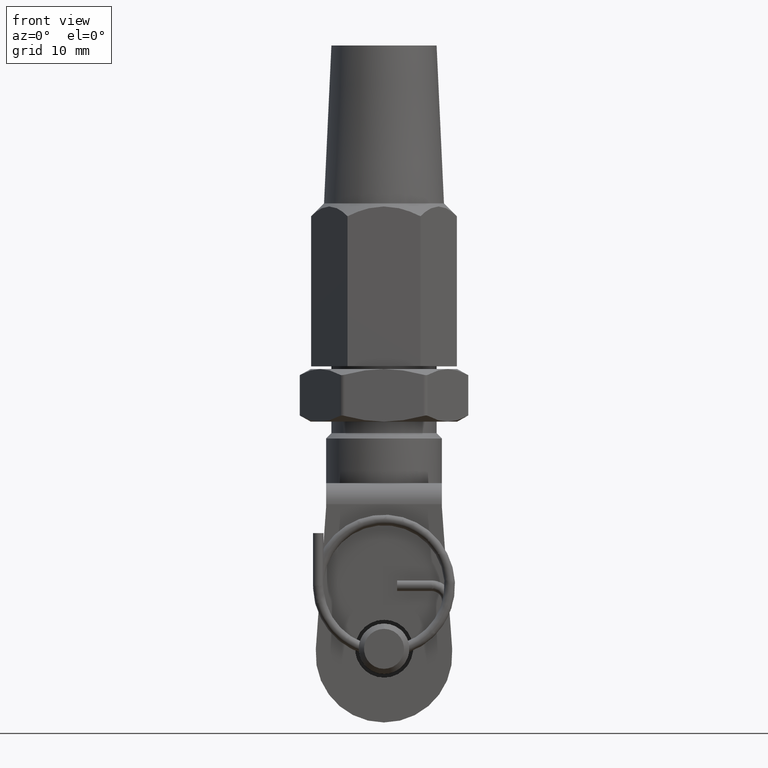
[diagram: clean part render]
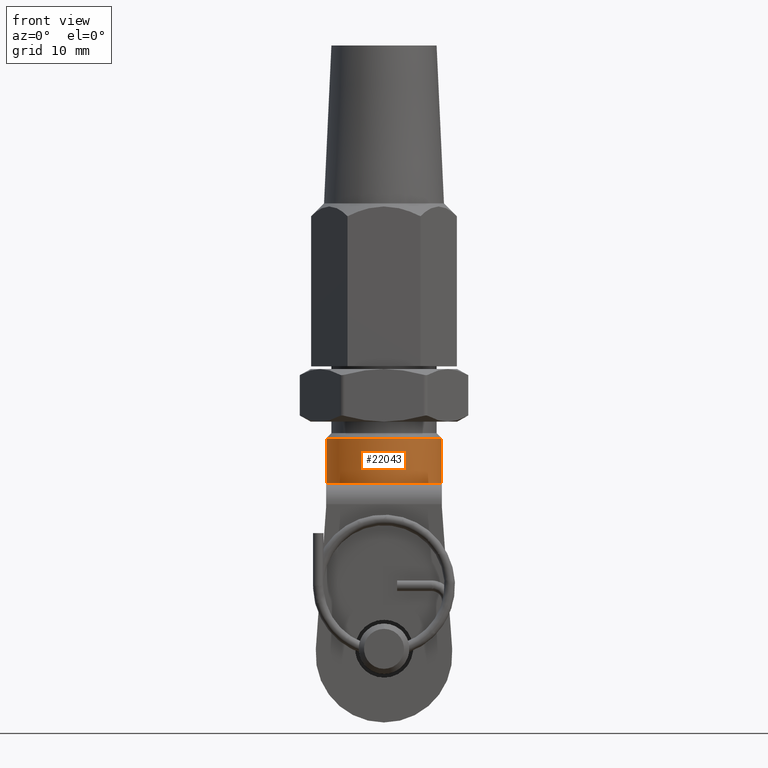
[diagram: same view with one face highlighted and labeled with its STEP entity id]
A machine part, front view. The second image highlights one B-rep face of the part: STEP entity #22043.
In plain terms, the highlighted cylindrical surface (partial cylindrical patch) has radius 5.5 mm, axis along (0, 0, 1).
Its self-contained STEP definition (entity closure, byte-faithful):
#376 = VERTEX_POINT ( 'NONE', #12684 ) ;
#911 = FACE_OUTER_BOUND ( 'NONE', #1230, .T. ) ;
#1032 = DIRECTION ( 'NONE',  ( 1.000000000000000000, 0.0000000000000000000, 0.0000000000000000000 ) ) ;
#1230 = EDGE_LOOP ( 'NONE', ( #14121, #6934, #17221, #10583, #10700 ) ) ;
#1234 = CARTESIAN_POINT ( 'NONE',  ( 0.0000000000000000000, 0.0000000000000000000, 0.0000000000000000000 ) ) ;
#1246 = DIRECTION ( 'NONE',  ( -0.0000000000000000000, -0.0000000000000000000, 1.000000000000000000 ) ) ;
#1351 = DIRECTION ( 'NONE',  ( -0.0000000000000000000, -0.0000000000000000000, 1.000000000000000000 ) ) ;
#1483 = DIRECTION ( 'NONE',  ( 1.000000000000000000, 0.0000000000000000000, 0.0000000000000000000 ) ) ;
#1703 = AXIS2_PLACEMENT_3D ( 'NONE', #21072, #8336, #1032 ) ;
#1870 = DIRECTION ( 'NONE',  ( -0.0000000000000000000, 0.0000000000000000000, 1.000000000000000000 ) ) ;
#2361 = VERTEX_POINT ( 'NONE', #12275 ) ;
#2706 = CARTESIAN_POINT ( 'NONE',  ( -5.500000000000000000, 6.735557395310441000E-016, 0.0000000000000000000 ) ) ;
#2831 = LINE ( 'NONE', #7141, #6254 ) ;
#3116 = CARTESIAN_POINT ( 'NONE',  ( 5.500000000000000000, 0.0000000000000000000, -4.250000000000000000 ) ) ;
#3486 = LINE ( 'NONE', #3671, #4901 ) ;
#3671 = CARTESIAN_POINT ( 'NONE',  ( 5.500000000000000000, 0.0000000000000000000, -6.500000000000000000 ) ) ;
#3704 = DIRECTION ( 'NONE',  ( 1.000000000000000000, 0.0000000000000000000, 0.0000000000000000000 ) ) ;
#3840 = CARTESIAN_POINT ( 'NONE',  ( -5.500000000000000000, 0.0000000000000000000, -4.250000000000000000 ) ) ;
#4901 = VECTOR ( 'NONE', #6131, 1000.000000000000000 ) ;
#5006 = VERTEX_POINT ( 'NONE', #3840 ) ;
#5058 = CARTESIAN_POINT ( 'NONE',  ( 0.0000000000000000000, 0.0000000000000000000, -6.500000000000000000 ) ) ;
#6131 = DIRECTION ( 'NONE',  ( -0.0000000000000000000, -0.0000000000000000000, 1.000000000000000000 ) ) ;
#6254 = VECTOR ( 'NONE', #1351, 1000.000000000000000 ) ;
#6934 = ORIENTED_EDGE ( 'NONE', *, *, #11840, .T. ) ;
#7141 = CARTESIAN_POINT ( 'NONE',  ( -5.500000000000000000, 6.735557395310441000E-016, -6.500000000000000000 ) ) ;
#7938 = CIRCLE ( 'NONE', #1703, 5.500000000000000000 ) ;
#7956 = CIRCLE ( 'NONE', #12938, 5.500000000000000000 ) ;
#8336 = DIRECTION ( 'NONE',  ( -0.0000000000000000000, 0.0000000000000000000, 1.000000000000000000 ) ) ;
#9012 = EDGE_CURVE ( 'NONE', #2361, #19632, #7956, .T. ) ;
#9180 = CARTESIAN_POINT ( 'NONE',  ( 0.0000000000000000000, 0.0000000000000000000, -4.250000000000000000 ) ) ;
#10583 = ORIENTED_EDGE ( 'NONE', *, *, #21008, .T. ) ;
#10700 = ORIENTED_EDGE ( 'NONE', *, *, #9012, .T. ) ;
#11132 = EDGE_CURVE ( 'NONE', #5006, #19632, #2831, .T. ) ;
#11451 = EDGE_CURVE ( 'NONE', #376, #13541, #7938, .T. ) ;
#11840 = EDGE_CURVE ( 'NONE', #5006, #376, #15917, .T. ) ;
#12191 = DIRECTION ( 'NONE',  ( 0.0000000000000000000, 0.0000000000000000000, -1.000000000000000000 ) ) ;
#12275 = CARTESIAN_POINT ( 'NONE',  ( 5.500000000000000000, 0.0000000000000000000, 0.0000000000000000000 ) ) ;
#12684 = CARTESIAN_POINT ( 'NONE',  ( 0.0000000000000000000, -5.500000000000000000, -4.250000000000000000 ) ) ;
#12938 = AXIS2_PLACEMENT_3D ( 'NONE', #1234, #12191, #19448 ) ;
#13541 = VERTEX_POINT ( 'NONE', #3116 ) ;
#14121 = ORIENTED_EDGE ( 'NONE', *, *, #11132, .F. ) ;
#15917 = CIRCLE ( 'NONE', #22763, 5.500000000000000000 ) ;
#17181 = AXIS2_PLACEMENT_3D ( 'NONE', #5058, #1246, #1483 ) ;
#17221 = ORIENTED_EDGE ( 'NONE', *, *, #11451, .T. ) ;
#18815 = CYLINDRICAL_SURFACE ( 'NONE', #17181, 5.500000000000000000 ) ;
#19448 = DIRECTION ( 'NONE',  ( -1.000000000000000000, 0.0000000000000000000, 0.0000000000000000000 ) ) ;
#19632 = VERTEX_POINT ( 'NONE', #2706 ) ;
#21008 = EDGE_CURVE ( 'NONE', #13541, #2361, #3486, .T. ) ;
#21072 = CARTESIAN_POINT ( 'NONE',  ( 0.0000000000000000000, 0.0000000000000000000, -4.250000000000000000 ) ) ;
#22043 = ADVANCED_FACE ( 'NONE', ( #911 ), #18815, .T. ) ;
#22763 = AXIS2_PLACEMENT_3D ( 'NONE', #9180, #1870, #3704 ) ;